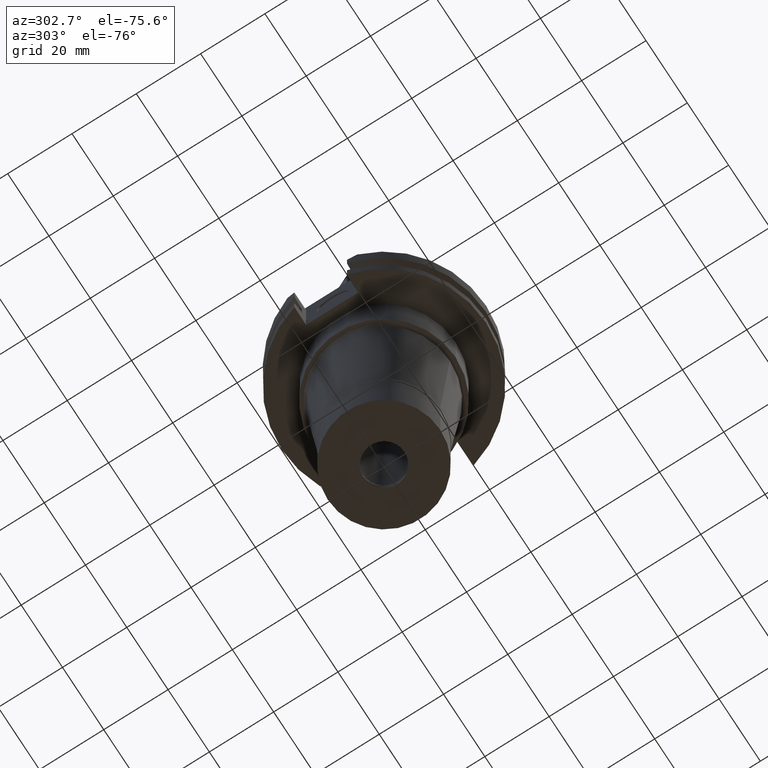
[diagram: clean part render]
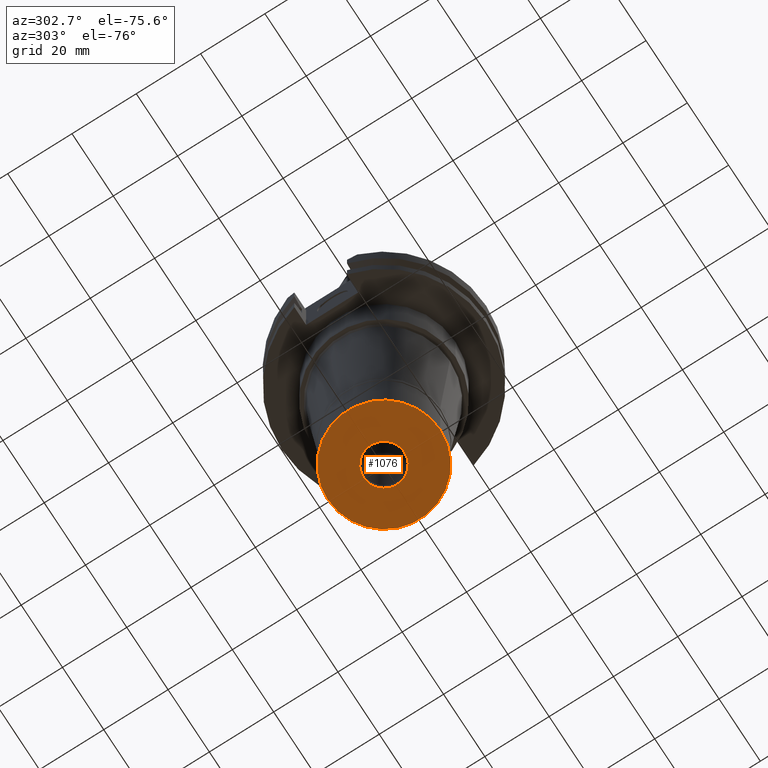
[diagram: same view with one face highlighted and labeled with its STEP entity id]
A machine part, auxiliary view. The second image highlights one B-rep face of the part: STEP entity #1076.
In plain terms, the highlighted planar face has unit normal (0, 0, -1).
Its self-contained STEP definition (entity closure, byte-faithful):
#4 = DIRECTION ( 'NONE',  ( 0.0000000000000000000, 0.0000000000000000000, -1.000000000000000000 ) ) ;
#298 = ORIENTED_EDGE ( 'NONE', *, *, #332, .F. ) ;
#332 = EDGE_CURVE ( 'NONE', #878, #929, #795, .T. ) ;
#391 = EDGE_LOOP ( 'NONE', ( #3157, #1020 ) ) ;
#462 = CARTESIAN_POINT ( 'NONE',  ( 0.0000000000000000000, 0.0000000000000000000, -22.50000000000000000 ) ) ;
#471 = AXIS2_PLACEMENT_3D ( 'NONE', #1576, #4, #2871 ) ;
#502 = AXIS2_PLACEMENT_3D ( 'NONE', #2511, #1715, #1992 ) ;
#580 = ORIENTED_EDGE ( 'NONE', *, *, #3190, .F. ) ;
#611 = AXIS2_PLACEMENT_3D ( 'NONE', #462, #2025, #2514 ) ;
#638 = DIRECTION ( 'NONE',  ( 0.0000000000000000000, 0.0000000000000000000, -1.000000000000000000 ) ) ;
#786 = VERTEX_POINT ( 'NONE', #2592 ) ;
#795 = CIRCLE ( 'NONE', #471, 6.349999999998999556 ) ;
#841 = DIRECTION ( 'NONE',  ( 0.0000000000000000000, 1.000000000000000000, 0.0000000000000000000 ) ) ;
#878 = VERTEX_POINT ( 'NONE', #1573 ) ;
#929 = VERTEX_POINT ( 'NONE', #1784 ) ;
#1020 = ORIENTED_EDGE ( 'NONE', *, *, #1918, .F. ) ;
#1076 = ADVANCED_FACE ( 'NONE', ( #3296, #1190 ), #2238, .T. ) ;
#1106 = CIRCLE ( 'NONE', #502, 17.50000000000000000 ) ;
#1190 = FACE_BOUND ( 'NONE', #1900, .T. ) ;
#1573 = CARTESIAN_POINT ( 'NONE',  ( 0.0000000000000000000, -6.349999999998999556, -22.50000000000000000 ) ) ;
#1576 = CARTESIAN_POINT ( 'NONE',  ( 0.0000000000000000000, 0.0000000000000000000, -22.50000000000000000 ) ) ;
#1592 = AXIS2_PLACEMENT_3D ( 'NONE', #3223, #2939, #1901 ) ;
#1645 = CIRCLE ( 'NONE', #1592, 17.50000000000000000 ) ;
#1669 = EDGE_CURVE ( 'NONE', #2892, #786, #1106, .T. ) ;
#1715 = DIRECTION ( 'NONE',  ( 0.0000000000000000000, 0.0000000000000000000, 1.000000000000000000 ) ) ;
#1784 = CARTESIAN_POINT ( 'NONE',  ( 0.0000000000000000000, 6.349999999998999556, -22.50000000000000000 ) ) ;
#1854 = CARTESIAN_POINT ( 'NONE',  ( 0.0000000000000000000, 0.0000000000000000000, -22.50000000000000000 ) ) ;
#1900 = EDGE_LOOP ( 'NONE', ( #580, #298 ) ) ;
#1901 = DIRECTION ( 'NONE',  ( 0.0000000000000000000, -1.000000000000000000, 0.0000000000000000000 ) ) ;
#1918 = EDGE_CURVE ( 'NONE', #786, #2892, #1645, .T. ) ;
#1992 = DIRECTION ( 'NONE',  ( 0.0000000000000000000, 1.000000000000000000, 0.0000000000000000000 ) ) ;
#2025 = DIRECTION ( 'NONE',  ( 0.0000000000000000000, 0.0000000000000000000, -1.000000000000000000 ) ) ;
#2238 = PLANE ( 'NONE',  #611 ) ;
#2511 = CARTESIAN_POINT ( 'NONE',  ( 0.0000000000000000000, 0.0000000000000000000, -22.50000000000000000 ) ) ;
#2514 = DIRECTION ( 'NONE',  ( 0.0000000000000000000, -1.000000000000000000, 0.0000000000000000000 ) ) ;
#2592 = CARTESIAN_POINT ( 'NONE',  ( 0.0000000000000000000, -17.50000000000000000, -22.50000000000000000 ) ) ;
#2638 = CIRCLE ( 'NONE', #2910, 6.349999999998999556 ) ;
#2871 = DIRECTION ( 'NONE',  ( 0.0000000000000000000, -1.000000000000000000, 0.0000000000000000000 ) ) ;
#2892 = VERTEX_POINT ( 'NONE', #3022 ) ;
#2910 = AXIS2_PLACEMENT_3D ( 'NONE', #1854, #638, #841 ) ;
#2939 = DIRECTION ( 'NONE',  ( 0.0000000000000000000, 0.0000000000000000000, 1.000000000000000000 ) ) ;
#3022 = CARTESIAN_POINT ( 'NONE',  ( 0.0000000000000000000, 17.50000000000000000, -22.50000000000000000 ) ) ;
#3157 = ORIENTED_EDGE ( 'NONE', *, *, #1669, .F. ) ;
#3190 = EDGE_CURVE ( 'NONE', #929, #878, #2638, .T. ) ;
#3223 = CARTESIAN_POINT ( 'NONE',  ( 0.0000000000000000000, 0.0000000000000000000, -22.50000000000000000 ) ) ;
#3296 = FACE_OUTER_BOUND ( 'NONE', #391, .T. ) ;